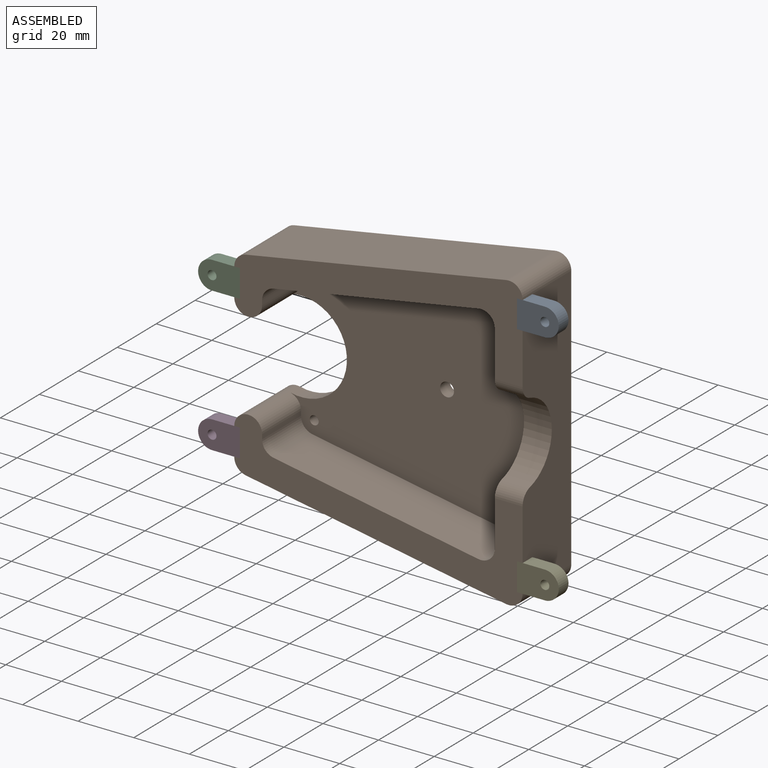
[diagram: assembled view]
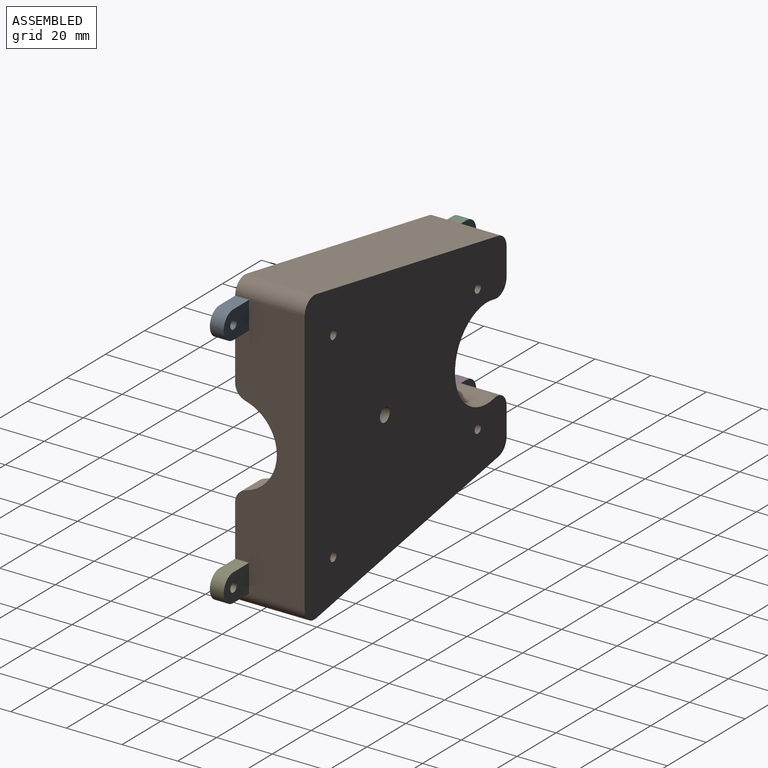
[diagram: assembled view, second angle]
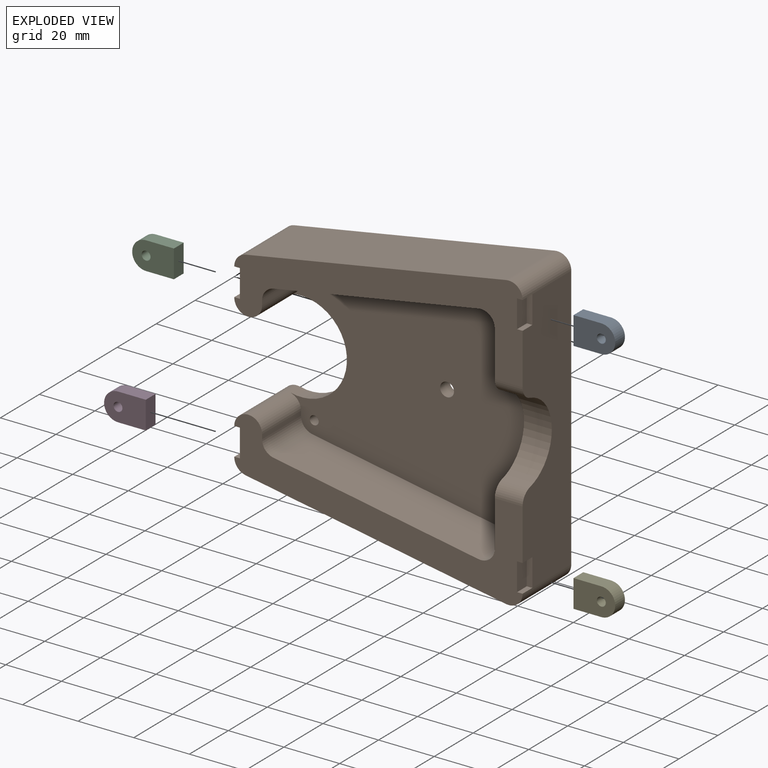
[diagram: exploded view]
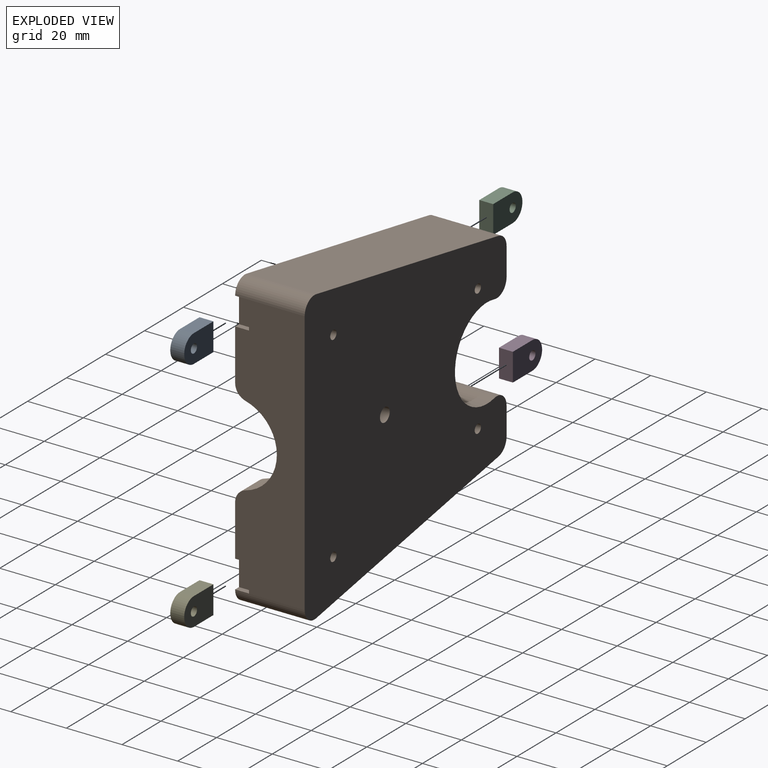
[diagram: exploded view, second angle]
ASSEMBLY  parts=5 mates=4
PART A: 7 faces, bbox 15x5x10 mm
  f0: plane 10x5mm, normal (0,0,1), area 50mm2, adj f1,f3,f5,f6
  f1: cylinder r=5mm len=10mm, axis (0,1,0), area 78.5mm2, adj f0,f2,f5,f6
  f2: plane 10x5mm, normal (0,0,-1), area 50mm2, adj f1,f3,f5,f6
  f3: plane 10x5mm, normal (1,0,0), area 50mm2, adj f0,f2,f5,f6
  f4: cylinder r=1.6mm len=5mm, axis (0,1,0), area 50.3mm2, adj f5,f6
  f5: plane 15x10mm, normal (0,-1,0), area 131.2mm2, adj f0,f1,f2,f3,f4
  f6: plane 15x10mm, normal (0,1,0), area 131.2mm2, adj f0,f1,f2,f3,f4
PART B: 49 faces, bbox 103.7x25x105.5 mm
  f0: plane 95.45x25mm, normal (1,0,0), area 1925.9mm2, adj f1,f2,f14,f27,f28,f30,f31,f32
  f1: plane 103.67x36.82mm, normal (0,-1,0), area 1334.7mm2, adj f0,f3,f8,f15,f16,f17,f20,f21
  f2: plane 103.67x36.82mm, normal (0,-1,0), area 1334.7mm2, adj f0,f4,f7,f17,f18,f19,f23,f24
  f3: plane 25x10.02mm, normal (-1,0,0), area 200.6mm2, adj f1,f14,f20,f29,f37,f39
  f4: plane 25x10.02mm, normal (-1,0,0), area 200.6mm2, adj f2,f14,f25,f26,f33,f35
  f5: plane 87.5x81.55mm, normal (0,-1,0), area 5235.9mm2, adj f6,f9,f10,f11,f12,f13,f15,f16
  f6: cylinder r=16.5mm len=33mm, axis (0,1,0), area 297.9mm2, adj f5,f14,f20,f25
  f7: plane 93.67x25mm, normal (-0.18,0,-0.98), area 2379mm2, adj f2,f14,f26,f27
  f8: plane 93.67x25mm, normal (-0.18,0,0.98), area 2379mm2, adj f1,f14,f28,f29
  f9: cylinder r=1.6mm len=5mm, axis (0,1,0), area 50.3mm2, adj f5,f14
  f10: cylinder r=1.6mm len=5mm, axis (0,1,0), area 50.3mm2, adj f5,f14
  f11: cylinder r=1.6mm len=5mm, axis (0,1,0), area 50.3mm2, adj f5,f14
  f12: cylinder r=2.5mm len=5mm, axis (0,1,0), area 78.5mm2, adj f5,f14
  f13: cylinder r=1.6mm len=5mm, axis (0,1,0), area 50.3mm2, adj f5,f14
  f14: plane 105.45x103.67mm, normal (0,1,0), area 8372.6mm2, adj f0,f3,f4,f6,f7,f8,f9,f10
  f15: plane 20x1.66mm, normal (1,0,0), area 33.1mm2, adj f1,f5,f20,f21
  f16: plane 73.67x20mm, normal (0.18,0,-0.98), area 1496.8mm2, adj f1,f5,f21,f22
  f17: plane 71.55x20mm, normal (-1,0,0), area 1070.5mm2, adj f1,f2,f5,f22,f23,f30,f31,f32
  f18: plane 73.67x20mm, normal (0.18,0,0.98), area 1496.8mm2, adj f2,f5,f23,f24
  f19: plane 20x1.66mm, normal (1,0,0), area 33.1mm2, adj f2,f5,f24,f25
  f20: cylinder r=5mm len=25mm, axis (0,1,0), area 359.3mm2, adj f1,f3,f5,f6,f14,f15
  f21: cylinder r=5mm len=20mm, axis (0,-1,0), area 139.3mm2, adj f1,f5,f15,f16
  f22: cylinder r=5mm len=20mm, axis (0,-1,0), area 174.8mm2, adj f1,f5,f16,f17
  f23: cylinder r=5mm len=20mm, axis (0,-1,0), area 174.8mm2, adj f2,f5,f17,f18
  f24: cylinder r=5mm len=20mm, axis (0,-1,0), area 139.3mm2, adj f2,f5,f18,f19
  f25: cylinder r=5mm len=25mm, axis (0,1,0), area 359.3mm2, adj f2,f4,f5,f6,f14,f19,f34
  f26: cylinder r=5mm len=25mm, axis (0,1,0), area 174.2mm2, adj f2,f4,f7,f14
  f27: cylinder r=5mm len=25mm, axis (0,1,0), area 218.5mm2, adj f0,f2,f7,f14,f42
  f28: cylinder r=5mm len=25mm, axis (0,1,0), area 218.5mm2, adj f0,f1,f8,f14,f47
  f29: cylinder r=5mm len=25mm, axis (0,1,0), area 174.2mm2, adj f1,f3,f8,f14,f38
  f30: cylinder r=15mm len=29.05mm, axis (1,0,0), area 395.4mm2, adj f0,f17,f31,f32
  f31: cylinder r=5mm len=10mm, axis (1,0,0), area 65.9mm2, adj f0,f2,f17,f30
  f32: cylinder r=5mm len=10mm, axis (1,0,0), area 65.9mm2, adj f0,f1,f17,f30
  f33: plane 5x2mm, normal (0,0,1), area 10mm2, adj f2,f4,f35,f36
  f34: plane 5x2mm, normal (0,0,-1), area 10mm2, adj f2,f25,f35,f36
  f35: plane 10x2mm, normal (0,-1,0), area 20mm2, adj f4,f33,f34,f36
  f36: plane 10x5mm, normal (-1,0,0), area 50mm2, adj f2,f33,f34,f35
  f37: plane 5x2mm, normal (0,0,1), area 10mm2, adj f1,f3,f39,f40
  f38: plane 5x2mm, normal (0,0,-1), area 10mm2, adj f1,f29,f39,f40
  f39: plane 10x2mm, normal (0,-1,0), area 20mm2, adj f3,f37,f38,f40
  f40: plane 10x5mm, normal (-1,0,0), area 50mm2, adj f1,f37,f38,f39
  f41: plane 5x2mm, normal (0,0,-1), area 10mm2, adj f0,f2,f43,f44
  f42: plane 5x2mm, normal (0,0,1), area 10mm2, adj f2,f27,f43,f44
  f43: plane 10x2mm, normal (0,-1,0), area 20mm2, adj f0,f41,f42,f44
  f44: plane 10x5mm, normal (1,0,0), area 50mm2, adj f2,f41,f42,f43
  f45: plane 5x2mm, normal (0,0,1), area 10mm2, adj f0,f1,f46,f48
  f46: plane 10x2mm, normal (0,-1,0), area 20mm2, adj f0,f45,f47,f48
  f47: plane 5x2mm, normal (0,0,-1), area 10mm2, adj f1,f28,f46,f48
  f48: plane 10x5mm, normal (1,0,0), area 50mm2, adj f1,f45,f46,f47
PART C: same geometry as A
PART D: same geometry as A
PART E: same geometry as A
PLACE A rot(axis=(0,0,1),180deg) t=(113.58,14.56,45.95)mm
PLACE B t=(95.58,39.56,3.23)mm
PLACE C t=(-6.09,19.56,29.16)mm
PLACE D t=(-6.09,19.56,-22.68)mm
PLACE E rot(axis=(0,0,1),180deg) t=(113.58,14.56,-39.5)mm
MATE fastened B.f40 <-> C.f3  axis (-1,0,0) through (3.91,17.06,29.16)mm
MATE fastened B.f36 <-> D.f3  axis (-1,0,0) through (3.91,17.06,-22.68)mm
MATE fastened A.f3 <-> B.f48  axis (-1,0,0) through (103.58,17.06,45.95)mm
MATE fastened E.f3 <-> B.f44  axis (-1,0,0) through (103.58,17.06,-39.5)mm
